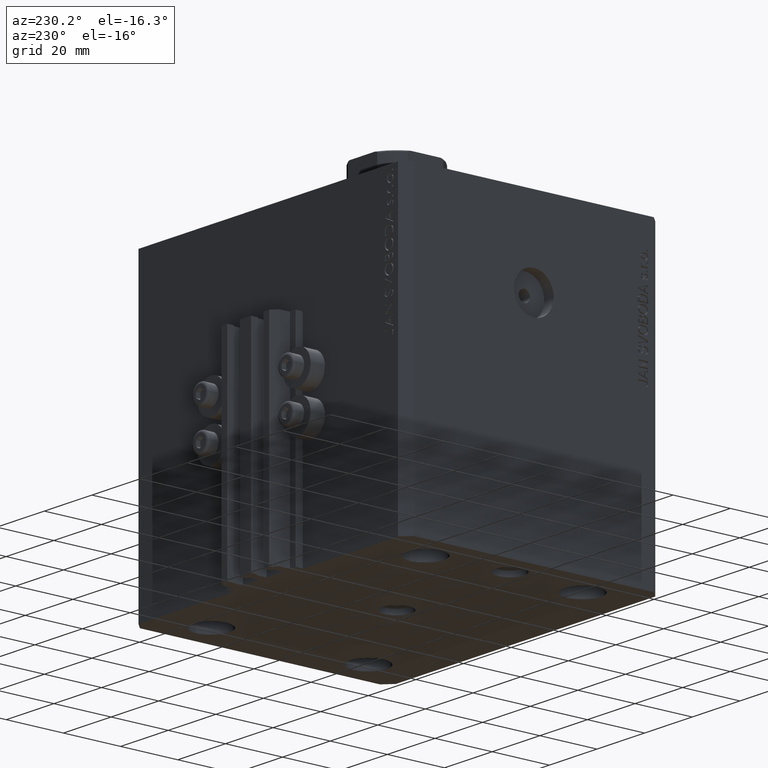
[diagram: clean part render]
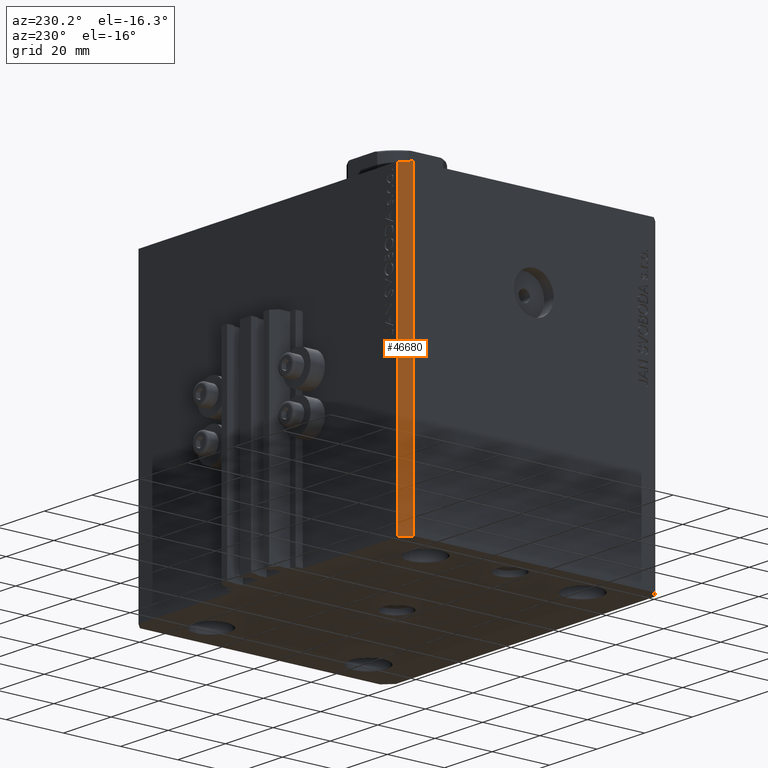
[diagram: same view with one face highlighted and labeled with its STEP entity id]
A machine part, auxiliary view. The second image highlights one B-rep face of the part: STEP entity #46680.
In plain terms, the highlighted planar face has unit normal (-0.7071, 0.7071, 0).
Its self-contained STEP definition (entity closure, byte-faithful):
#485 = DIRECTION ( 'NONE',  ( -0.7071067811865483499, -0.7071067811865466846, 0.000000000000000000 ) ) ;
#582 = LINE ( 'NONE', #25948, #27836 ) ;
#770 = PLANE ( 'NONE',  #14888 ) ;
#1559 = ORIENTED_EDGE ( 'NONE', *, *, #45687, .F. ) ;
#1674 = LINE ( 'NONE', #45718, #8565 ) ;
#3486 = VERTEX_POINT ( 'NONE', #24113 ) ;
#3903 = ORIENTED_EDGE ( 'NONE', *, *, #35970, .F. ) ;
#4129 = FACE_OUTER_BOUND ( 'NONE', #14987, .T. ) ;
#4546 = LINE ( 'NONE', #12200, #35823 ) ;
#4905 = VECTOR ( 'NONE', #485, 1000.000000000000000 ) ;
#5049 = EDGE_CURVE ( 'NONE', #17537, #11091, #4546, .T. ) ;
#8383 = DIRECTION ( 'NONE',  ( 0.000000000000000000, 0.000000000000000000, 1.000000000000000000 ) ) ;
#8565 = VECTOR ( 'NONE', #8383, 1000.000000000000000 ) ;
#11091 = VERTEX_POINT ( 'NONE', #20133 ) ;
#12200 = CARTESIAN_POINT ( 'NONE',  ( -57.49999999999998579, 42.00000000000000711, -105.0000000000000000 ) ) ;
#14888 = AXIS2_PLACEMENT_3D ( 'NONE', #25899, #26134, #40510 ) ;
#14987 = EDGE_LOOP ( 'NONE', ( #1559, #3903, #45778, #16565 ) ) ;
#16565 = ORIENTED_EDGE ( 'NONE', *, *, #5049, .T. ) ;
#17537 = VERTEX_POINT ( 'NONE', #41780 ) ;
#18675 = LINE ( 'NONE', #40925, #4905 ) ;
#20133 = CARTESIAN_POINT ( 'NONE',  ( -57.49999999999998579, 42.00000000000000711, 0.000000000000000000 ) ) ;
#24113 = CARTESIAN_POINT ( 'NONE',  ( -54.49999999999999289, 45.00000000000000000, 0.000000000000000000 ) ) ;
#25899 = CARTESIAN_POINT ( 'NONE',  ( -54.49999999999999289, 45.00000000000000000, -105.0000000000000000 ) ) ;
#25948 = CARTESIAN_POINT ( 'NONE',  ( -54.49999999999999289, 45.00000000000000000, -105.0000000000000000 ) ) ;
#26134 = DIRECTION ( 'NONE',  ( -0.7071067811865466846, 0.7071067811865484609, 0.000000000000000000 ) ) ;
#27836 = VECTOR ( 'NONE', #30246, 1000.000000000000000 ) ;
#28075 = VERTEX_POINT ( 'NONE', #34046 ) ;
#30246 = DIRECTION ( 'NONE',  ( -0.7071067811865483499, -0.7071067811865466846, 0.000000000000000000 ) ) ;
#30389 = DIRECTION ( 'NONE',  ( 0.000000000000000000, 0.000000000000000000, 1.000000000000000000 ) ) ;
#34046 = CARTESIAN_POINT ( 'NONE',  ( -54.49999999999999289, 45.00000000000000000, -105.0000000000000000 ) ) ;
#35823 = VECTOR ( 'NONE', #30389, 1000.000000000000000 ) ;
#35970 = EDGE_CURVE ( 'NONE', #28075, #3486, #1674, .T. ) ;
#40510 = DIRECTION ( 'NONE',  ( -0.7071067811865483499, -0.7071067811865465735, 0.000000000000000000 ) ) ;
#40925 = CARTESIAN_POINT ( 'NONE',  ( -54.49999999999999289, 45.00000000000000000, 0.000000000000000000 ) ) ;
#41780 = CARTESIAN_POINT ( 'NONE',  ( -57.49999999999998579, 42.00000000000000711, -105.0000000000000000 ) ) ;
#42091 = EDGE_CURVE ( 'NONE', #28075, #17537, #582, .T. ) ;
#45687 = EDGE_CURVE ( 'NONE', #3486, #11091, #18675, .T. ) ;
#45718 = CARTESIAN_POINT ( 'NONE',  ( -54.49999999999999289, 45.00000000000000000, -105.0000000000000000 ) ) ;
#45778 = ORIENTED_EDGE ( 'NONE', *, *, #42091, .T. ) ;
#46680 = ADVANCED_FACE ( 'NONE', ( #4129 ), #770, .T. ) ;